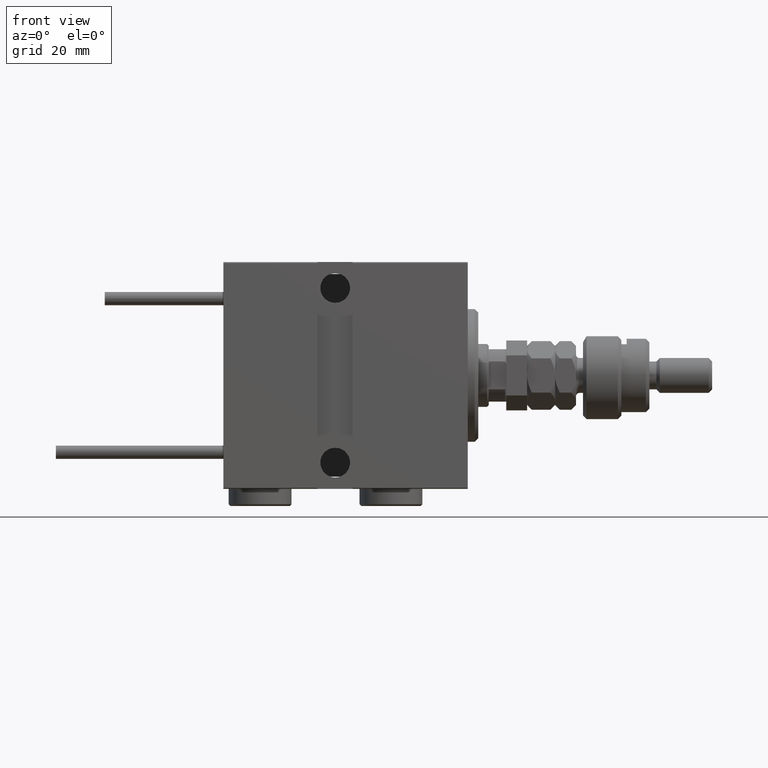
[diagram: clean part render]
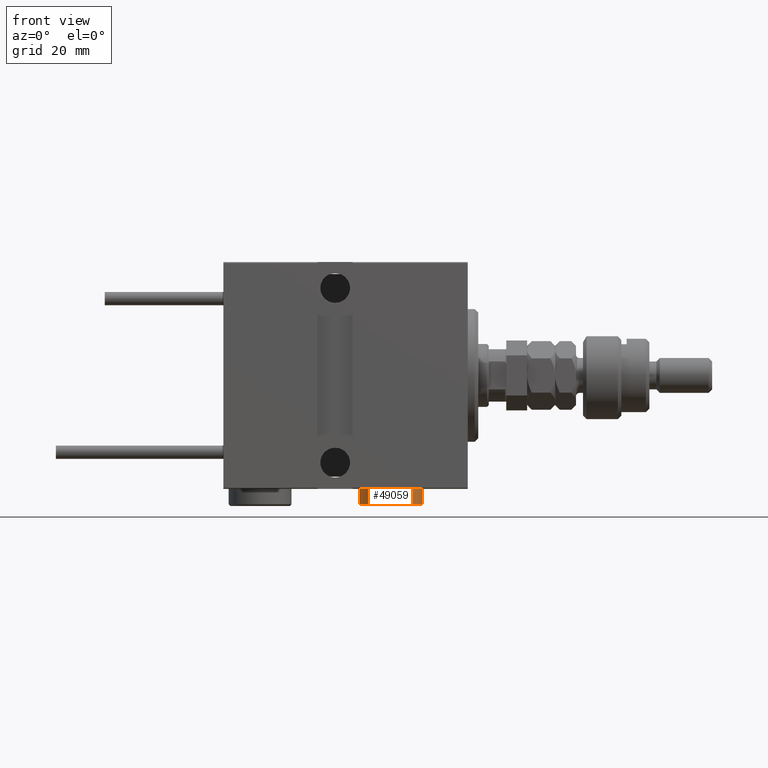
[diagram: same view with one face highlighted and labeled with its STEP entity id]
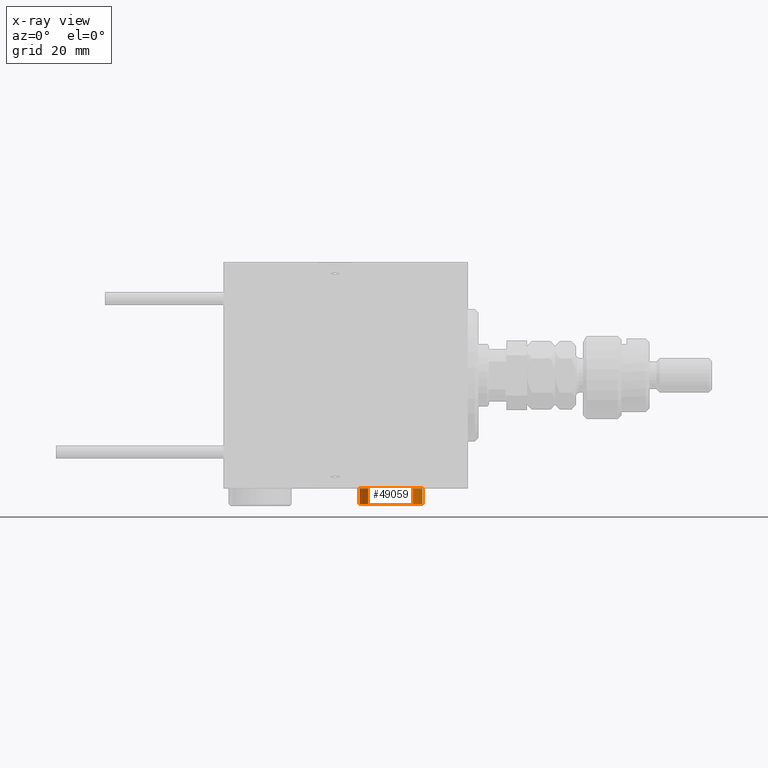
[diagram: x-ray of the same camera — body ghosted, the highlighted face saturated]
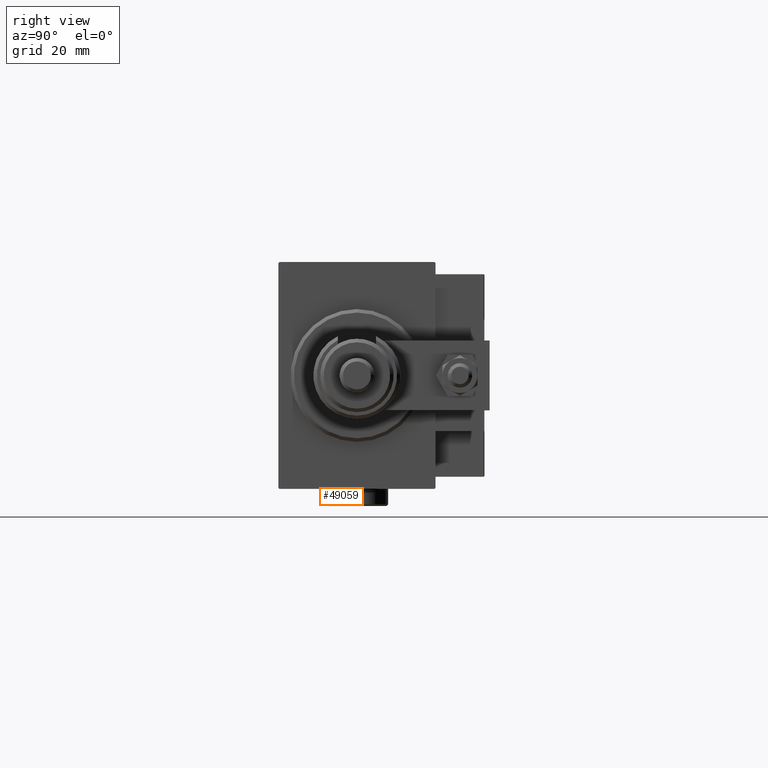
[diagram: same view with one face highlighted and labeled with its STEP entity id]
A machine part, front view. The second image highlights one B-rep face of the part: STEP entity #49059.
The next image is the same camera in x-ray: the body ghosted, the highlighted face saturated — about 0% of this face is hidden behind the body in this view.
A second angle (right view) of the same face is appended — the face is thin or edge-on in the first view.
In plain terms, the highlighted cylindrical surface (edge-blend (fillet) strip) has radius 9 mm, axis along (0, 0, 1).
Its self-contained STEP definition (entity closure, byte-faithful):
#1271 = CYLINDRICAL_SURFACE ( 'NONE', #49845, 9.000000000000001776 ) ;
#1533 = DIRECTION ( 'NONE',  ( -0.000000000000000000, -0.000000000000000000, -1.000000000000000000 ) ) ;
#1599 = DIRECTION ( 'NONE',  ( 0.000000000000000000, 0.000000000000000000, 1.000000000000000000 ) ) ;
#2659 = EDGE_CURVE ( 'NONE', #41846, #24033, #15256, .T. ) ;
#3816 = VERTEX_POINT ( 'NONE', #19732 ) ;
#4016 = CARTESIAN_POINT ( 'NONE',  ( 9.000000000000001776, 1.102182119232617911E-15, 4.500000000000006217 ) ) ;
#4334 = EDGE_CURVE ( 'NONE', #24033, #40142, #21980, .T. ) ;
#6913 = DIRECTION ( 'NONE',  ( -1.000000000000000000, 0.000000000000000000, 0.000000000000000000 ) ) ;
#7236 = ORIENTED_EDGE ( 'NONE', *, *, #31991, .F. ) ;
#9693 = AXIS2_PLACEMENT_3D ( 'NONE', #38982, #35436, #52325 ) ;
#9726 = FACE_OUTER_BOUND ( 'NONE', #37381, .T. ) ;
#10115 = CARTESIAN_POINT ( 'NONE',  ( -9.000000000000001776, 0.000000000000000000, 0.000000000000000000 ) ) ;
#15256 = LINE ( 'NONE', #48270, #52528 ) ;
#19732 = CARTESIAN_POINT ( 'NONE',  ( -9.000000000000001776, 0.000000000000000000, 4.500000000000006217 ) ) ;
#20912 = EDGE_CURVE ( 'NONE', #3816, #41846, #33222, .T. ) ;
#21980 = CIRCLE ( 'NONE', #30697, 9.000000000000001776 ) ;
#24033 = VERTEX_POINT ( 'NONE', #36548 ) ;
#25486 = ORIENTED_EDGE ( 'NONE', *, *, #2659, .T. ) ;
#30160 = DIRECTION ( 'NONE',  ( -0.000000000000000000, -0.000000000000000000, -1.000000000000000000 ) ) ;
#30697 = AXIS2_PLACEMENT_3D ( 'NONE', #32345, #1599, #47442 ) ;
#31991 = EDGE_CURVE ( 'NONE', #3816, #40142, #46538, .T. ) ;
#32001 = CARTESIAN_POINT ( 'NONE',  ( 0.000000000000000000, 0.000000000000000000, 5.000000000000000000 ) ) ;
#32345 = CARTESIAN_POINT ( 'NONE',  ( 0.000000000000000000, 0.000000000000000000, 0.000000000000000000 ) ) ;
#33222 = CIRCLE ( 'NONE', #9693, 9.000000000000001776 ) ;
#35436 = DIRECTION ( 'NONE',  ( 0.000000000000000000, 0.000000000000000000, -1.000000000000000000 ) ) ;
#35458 = DIRECTION ( 'NONE',  ( -0.000000000000000000, -0.000000000000000000, -1.000000000000000000 ) ) ;
#36548 = CARTESIAN_POINT ( 'NONE',  ( 9.000000000000001776, 1.102182119232617911E-15, 0.000000000000000000 ) ) ;
#37381 = EDGE_LOOP ( 'NONE', ( #37453, #25486, #43864, #7236 ) ) ;
#37453 = ORIENTED_EDGE ( 'NONE', *, *, #20912, .T. ) ;
#38630 = CARTESIAN_POINT ( 'NONE',  ( -9.000000000000001776, 0.000000000000000000, 5.000000000000000000 ) ) ;
#38982 = CARTESIAN_POINT ( 'NONE',  ( 0.000000000000000000, 0.000000000000000000, 4.500000000000006217 ) ) ;
#40142 = VERTEX_POINT ( 'NONE', #10115 ) ;
#40508 = VECTOR ( 'NONE', #30160, 1000.000000000000000 ) ;
#41846 = VERTEX_POINT ( 'NONE', #4016 ) ;
#43864 = ORIENTED_EDGE ( 'NONE', *, *, #4334, .T. ) ;
#46538 = LINE ( 'NONE', #38630, #40508 ) ;
#47442 = DIRECTION ( 'NONE',  ( 1.000000000000000000, 0.000000000000000000, 0.000000000000000000 ) ) ;
#48270 = CARTESIAN_POINT ( 'NONE',  ( 9.000000000000001776, 1.102182119232617911E-15, 5.000000000000000000 ) ) ;
#49059 = ADVANCED_FACE ( 'NONE', ( #9726 ), #1271, .T. ) ;
#49845 = AXIS2_PLACEMENT_3D ( 'NONE', #32001, #1533, #6913 ) ;
#52325 = DIRECTION ( 'NONE',  ( 1.000000000000000000, 0.000000000000000000, 0.000000000000000000 ) ) ;
#52528 = VECTOR ( 'NONE', #35458, 1000.000000000000000 ) ;